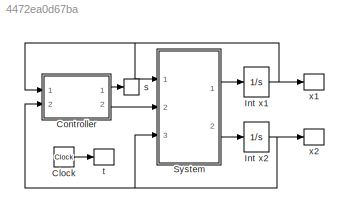
MODEL slx_4472ea0d67ba
KIND model
CONFIG AbsTol = auto
CONFIG FixedStep = t_step
CONFIG MaxStep = auto
CONFIG MinStep = auto
CONFIG RelTol = 1e-3
CONFIG SampleTimeConstraint = Unconstrained
CONFIG Solver = ode3
CONFIG SolverMode = Auto
CONFIG SolverName = ode3
CONFIG StartTime = 0.0
CONFIG StopTime = tf
BLOCK [Clock] Clock
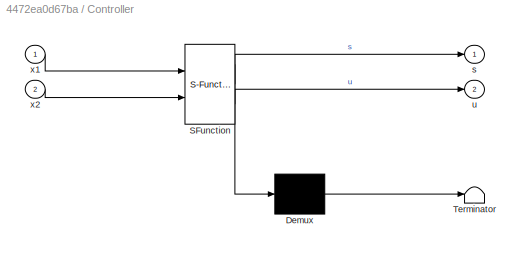
BLOCK [SubSystem] Controller
  ErrorFcn = Stateflow.Translate.translate
  PermitHierarchicalResolution = ExplicitOnly
  Ports = [2, 2]
  RequestExecContextInheritance = off
  SFBlockType = MATLAB Function
  TreatAsAtomicUnit = on
BLOCK [Demux] Controller/ Demux 
  Outputs = 1
  Ports = [1, 1]
BLOCK [S-Function] Controller/ SFunction 
  EnableBusSupport = on
  FunctionName = sf_sfun
  Parameters = K,lamb,phi,xd1
  PortCounts = [2 3]
  Ports = [2, 3]
  Tag = Stateflow S-Function L2_Q4_Sim 2
BLOCK [Terminator] Controller/ Terminator 
BLOCK [Outport] Controller/s
  IconDisplay = Port number
BLOCK [Outport] Controller/u
  IconDisplay = Port number
  Port = 2
BLOCK [Inport] Controller/x1
  IconDisplay = Port number
BLOCK [Inport] Controller/x2
  IconDisplay = Port number
  Port = 2
BLOCK [Integrator] Int x1
  Ports = [1, 1]
BLOCK [Integrator] Int x2
  Ports = [1, 1]
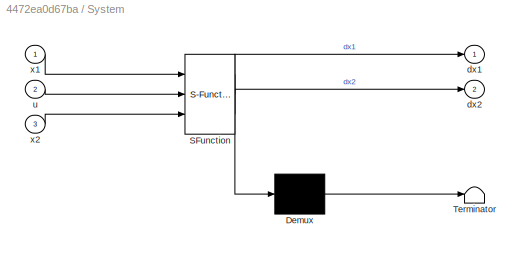
BLOCK [SubSystem] System
  ErrorFcn = Stateflow.Translate.translate
  PermitHierarchicalResolution = ExplicitOnly
  Ports = [3, 2]
  RequestExecContextInheritance = off
  SFBlockType = MATLAB Function
  TreatAsAtomicUnit = on
BLOCK [Demux] System/ Demux 
  Outputs = 1
  Ports = [1, 1]
BLOCK [S-Function] System/ SFunction 
  EnableBusSupport = on
  FunctionName = sf_sfun
  Parameters = c,k
  PortCounts = [3 3]
  Ports = [3, 3]
  Tag = Stateflow S-Function L2_Q4_Sim 1
BLOCK [Terminator] System/ Terminator 
BLOCK [Outport] System/dx1
  IconDisplay = Port number
BLOCK [Outport] System/dx2
  IconDisplay = Port number
  Port = 2
BLOCK [Inport] System/u
  IconDisplay = Port number
  Port = 2
BLOCK [Inport] System/x1
  IconDisplay = Port number
BLOCK [Inport] System/x2
  IconDisplay = Port number
  Port = 3
BLOCK [ToWorkspace] s
  FixptAsFi = on
  MaxDataPoints = inf
  Ports = [1]
  SampleTime = -1
  Save2DSignal = 3-D array (concatenate along third dimension)
  VariableName = s
BLOCK [ToWorkspace] t
  FixptAsFi = on
  MaxDataPoints = inf
  Ports = [1]
  SampleTime = -1
  Save2DSignal = 3-D array (concatenate along third dimension)
  VariableName = t
BLOCK [ToWorkspace] x1
  FixptAsFi = on
  MaxDataPoints = inf
  Ports = [1]
  SampleTime = -1
  Save2DSignal = 3-D array (concatenate along third dimension)
  VariableName = x1
BLOCK [ToWorkspace] x2
  FixptAsFi = on
  MaxDataPoints = inf
  Ports = [1]
  SampleTime = -1
  Save2DSignal = 3-D array (concatenate along third dimension)
  VariableName = x2
LINE Clock:1 -> t:1
LINE Controller:1 -> s:1
LINE Controller:2 -> System:2
NET Int x1:1 -> Controller:1, System:1, x1:1
NET Int x2:1 -> Controller:2, System:3, x2:1
LINE System:1 -> Int x1:1
LINE System:2 -> Int x2:1
note: NET lines group one-source signal fan-out (src -> all destinations, sorted); 1:1 wires keep LINE
CHART System states=1 transitions=1
  STATE_LABEL 'eML_blk_kernel()'
  STATE_LABEL 'SCRIPT:\nfunction [dx1, dx2] = fcn(x1, u, x2, c, k)\ndx1 = x2;\ndx2 = u - c*abs(x1)*x2^2 - k*x1^3*cos(2*x1);'
CHART Controller states=1 transitions=1
  STATE_LABEL 'eML_blk_kernel()'
  STATE_LABEL 'SCRIPT:\nfunction [s,u] = fcn(x1, x2, xd1, lamb, phi, K)\nu_hat = 2*x1^3*cos(2*x1) - lamb*x2;\ns = x2 + lamb * (x1 - xd1);\nsat_s = min(1, max(-1, s/phi));\nu = u_hat - K * sat_s;'
